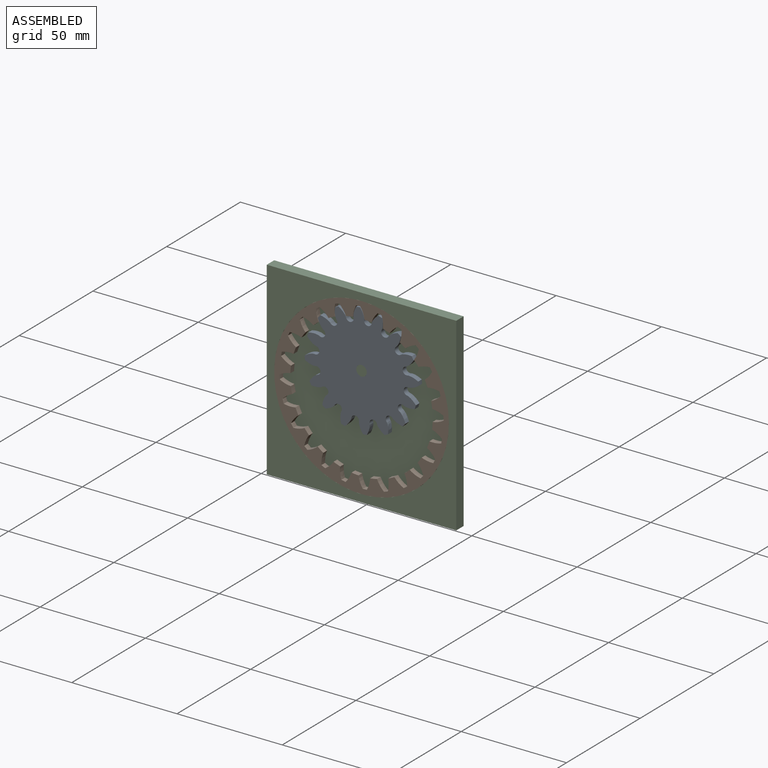
[diagram: assembled view]
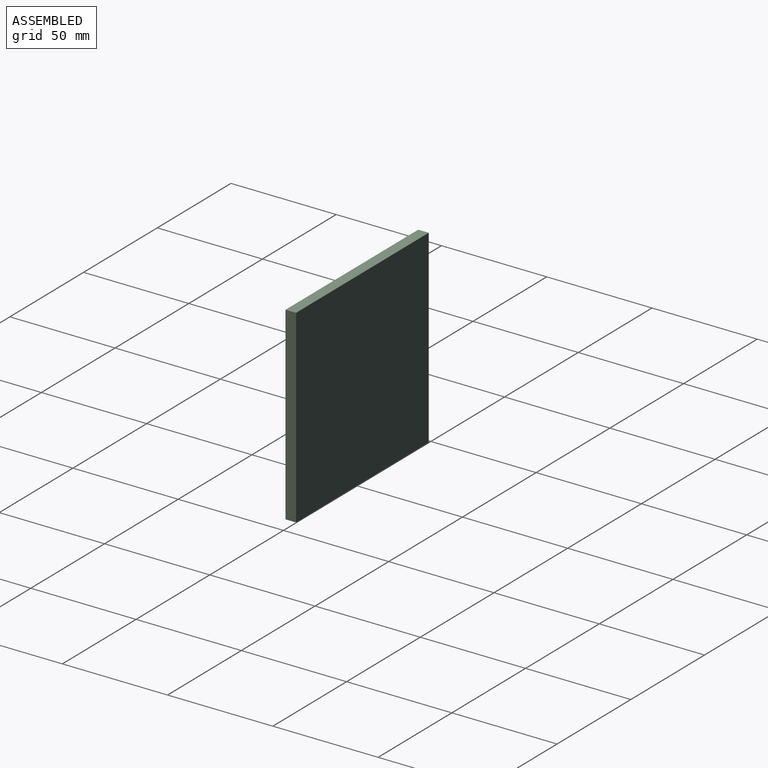
[diagram: assembled view, second angle]
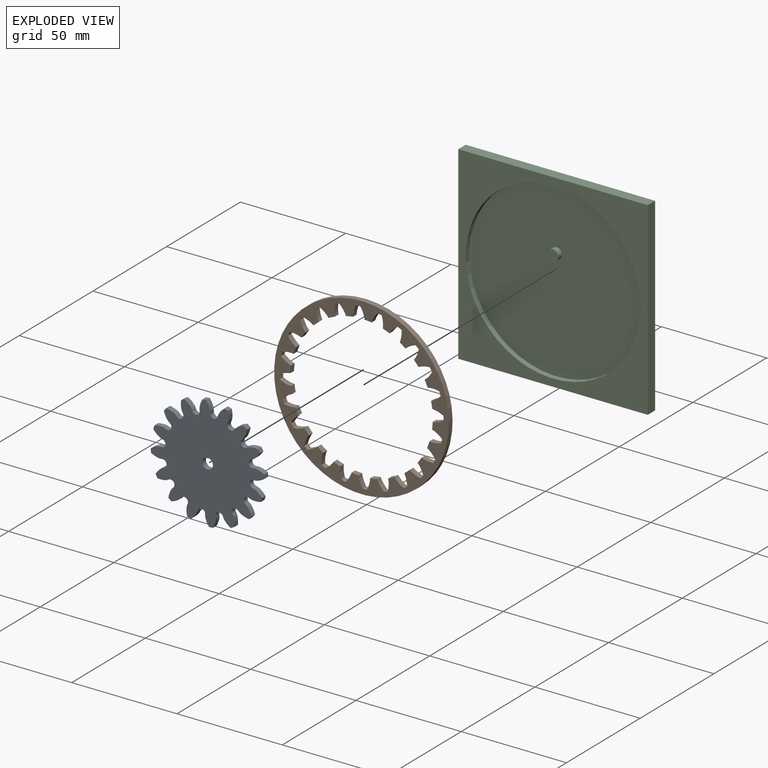
[diagram: exploded view]
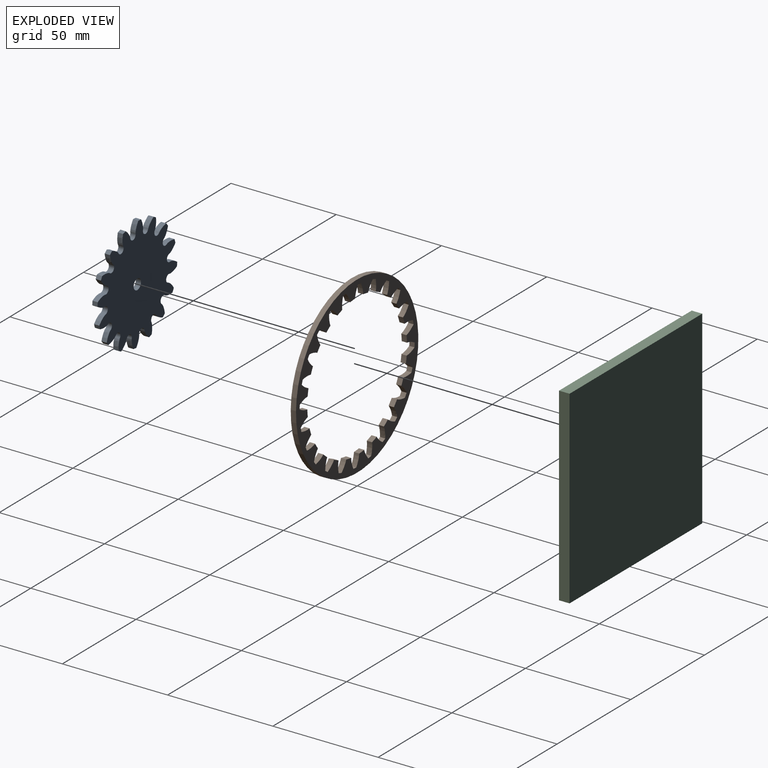
[diagram: exploded view, second angle]
ASSEMBLY  parts=3 mates=2
PART A: 99 faces, bbox 54.1x2.5x54.1 mm
  f0: plane 54.15x54.15mm, normal (0,-1,0), area 1752mm2, adj f1,f2,f3,f4,f5,f6,f7,f8
  f1: cylinder r=1.81mm len=3.56mm, axis (0,1,0), area 13.5mm2, adj f0,f17,f23,f97
  f2: cylinder r=1.81mm len=3.56mm, axis (0,1,0), area 13.5mm2, adj f0,f18,f92,f97
  f3: cylinder r=1.81mm len=3.24mm, axis (0,1,0), area 13.5mm2, adj f0,f22,f28,f97
  f4: cylinder r=1.81mm len=3.24mm, axis (0,1,0), area 13.5mm2, adj f0,f27,f33,f97
  f5: cylinder r=1.81mm len=3.56mm, axis (0,1,0), area 13.5mm2, adj f0,f32,f38,f97
  f6: cylinder r=1.81mm len=3.56mm, axis (0,1,0), area 13.5mm2, adj f0,f37,f43,f97
  f7: cylinder r=1.81mm len=3.24mm, axis (0,1,0), area 13.5mm2, adj f0,f42,f48,f97
  f8: cylinder r=1.81mm len=3.24mm, axis (0,1,0), area 13.5mm2, adj f0,f47,f53,f97
  f9: cylinder r=1.81mm len=3.56mm, axis (0,1,0), area 13.5mm2, adj f0,f52,f58,f97
  f10: cylinder r=1.81mm len=3.56mm, axis (0,1,0), area 13.5mm2, adj f0,f57,f63,f97
  f11: cylinder r=1.81mm len=3.24mm, axis (0,1,0), area 13.5mm2, adj f0,f62,f68,f97
  f12: cylinder r=1.81mm len=3.24mm, axis (0,1,0), area 13.5mm2, adj f0,f67,f73,f97
  f13: cylinder r=1.81mm len=3.56mm, axis (0,1,0), area 13.5mm2, adj f0,f72,f78,f97
  f14: cylinder r=1.81mm len=3.56mm, axis (0,1,0), area 13.5mm2, adj f0,f77,f83,f97
  f15: cylinder r=1.81mm len=3.24mm, axis (0,1,0), area 13.5mm2, adj f0,f82,f88,f97
  f16: cylinder r=1.81mm len=3.24mm, axis (0,1,0), area 13.5mm2, adj f0,f87,f93,f97
  f17: plane 2.5x0.56mm, normal (-0.99,0,-0.11), area 1.4mm2, adj f0,f1,f21,f97
  f18: plane 2.5x0.56mm, normal (0.99,0,-0.11), area 1.4mm2, adj f0,f2,f19,f97
  f19: extruded ~4.64x2.5mm, area 12.5mm2, adj f0,f18,f20,f97
  f20: plane 2.5x1.85mm, normal (-0.03,0,1), area 4.6mm2, adj f0,f19,f21,f97
  f21: extruded ~4.58x2.5mm, area 12.3mm2, adj f0,f17,f20,f97
  f22: plane 2.5x0.49mm, normal (-0.87,0,-0.49), area 1.4mm2, adj f0,f3,f26,f97
  f23: plane 2.5x0.54mm, normal (0.96,0,0.28), area 1.4mm2, adj f0,f1,f24,f97
  f24: extruded ~3.65x3.31mm, area 12.5mm2, adj f0,f23,f25,f97
  f25: plane 2.5x1.68mm, normal (-0.41,0,0.91), area 4.6mm2, adj f0,f24,f26,f97
  f26: extruded ~4.85x2.5mm, area 12.3mm2, adj f0,f22,f25,f97
  f27: plane 2.5x0.44mm, normal (-0.62,0,-0.78), area 1.4mm2, adj f0,f4,f31,f97
  f28: plane 2.5x0.44mm, normal (0.78,0,0.62), area 1.4mm2, adj f0,f3,f29,f97
  f29: extruded ~4.46x2.5mm, area 12.5mm2, adj f0,f28,f30,f97
  f30: plane 2.5x1.35mm, normal (-0.73,0,0.68), area 4.6mm2, adj f0,f29,f31,f97
  f31: extruded ~4.38x2.5mm, area 12.3mm2, adj f0,f27,f30,f97
  f32: plane 2.5x0.54mm, normal (-0.28,0,-0.96), area 1.4mm2, adj f0,f5,f36,f97
  f33: plane 2.5x0.49mm, normal (0.49,0,0.87), area 1.4mm2, adj f0,f4,f34,f97
  f34: extruded ~4.92x2.5mm, area 12.5mm2, adj f0,f33,f35,f97
  f35: plane 2.5x1.73mm, normal (-0.94,0,0.35), area 4.6mm2, adj f0,f34,f36,f97
  f36: extruded ~3.61x3.25mm, area 12.3mm2, adj f0,f32,f35,f97
  f37: plane 2.5x0.56mm, normal (0.11,0,-0.99), area 1.4mm2, adj f0,f6,f41,f97
  f38: plane 2.5x0.56mm, normal (0.11,0,0.99), area 1.4mm2, adj f0,f5,f39,f97
  f39: extruded ~4.64x2.5mm, area 12.5mm2, adj f0,f38,f40,f97
  f40: plane 2.5x1.85mm, normal (-1,0,-0.03), area 4.6mm2, adj f0,f39,f41,f97
  f41: extruded ~4.58x2.5mm, area 12.3mm2, adj f0,f37,f40,f97
  f42: plane 2.5x0.49mm, normal (0.49,0,-0.87), area 1.4mm2, adj f0,f7,f46,f97
  f43: plane 2.5x0.54mm, normal (-0.28,0,0.96), area 1.4mm2, adj f0,f6,f44,f97
  f44: extruded ~3.65x3.31mm, area 12.5mm2, adj f0,f43,f45,f97
  f45: plane 2.5x1.68mm, normal (-0.91,0,-0.41), area 4.6mm2, adj f0,f44,f46,f97
  f46: extruded ~4.85x2.5mm, area 12.3mm2, adj f0,f42,f45,f97
  f47: plane 2.5x0.44mm, normal (0.78,0,-0.62), area 1.4mm2, adj f0,f8,f51,f97
  f48: plane 2.5x0.44mm, normal (-0.62,0,0.78), area 1.4mm2, adj f0,f7,f49,f97
  f49: extruded ~4.46x2.5mm, area 12.5mm2, adj f0,f48,f50,f97
  f50: plane 2.5x1.35mm, normal (-0.68,0,-0.73), area 4.6mm2, adj f0,f49,f51,f97
  f51: extruded ~4.38x2.5mm, area 12.3mm2, adj f0,f47,f50,f97
  f52: plane 2.5x0.54mm, normal (0.96,0,-0.28), area 1.4mm2, adj f0,f9,f56,f97
  f53: plane 2.5x0.49mm, normal (-0.87,0,0.49), area 1.4mm2, adj f0,f8,f54,f97
  f54: extruded ~4.92x2.5mm, area 12.5mm2, adj f0,f53,f55,f97
  f55: plane 2.5x1.73mm, normal (-0.35,0,-0.94), area 4.6mm2, adj f0,f54,f56,f97
  f56: extruded ~3.61x3.25mm, area 12.3mm2, adj f0,f52,f55,f97
  f57: plane 2.5x0.56mm, normal (0.99,0,0.11), area 1.4mm2, adj f0,f10,f61,f97
  f58: plane 2.5x0.56mm, normal (-0.99,0,0.11), area 1.4mm2, adj f0,f9,f59,f97
  f59: extruded ~4.64x2.5mm, area 12.5mm2, adj f0,f58,f60,f97
  f60: plane 2.5x1.85mm, normal (0.03,0,-1), area 4.6mm2, adj f0,f59,f61,f97
  f61: extruded ~4.58x2.5mm, area 12.3mm2, adj f0,f57,f60,f97
  f62: plane 2.5x0.49mm, normal (0.87,0,0.49), area 1.4mm2, adj f0,f11,f66,f97
  f63: plane 2.5x0.54mm, normal (-0.96,0,-0.28), area 1.4mm2, adj f0,f10,f64,f97
  f64: extruded ~3.65x3.31mm, area 12.5mm2, adj f0,f63,f65,f97
  f65: plane 2.5x1.68mm, normal (0.41,0,-0.91), area 4.6mm2, adj f0,f64,f66,f97
  f66: extruded ~4.85x2.5mm, area 12.3mm2, adj f0,f62,f65,f97
  f67: plane 2.5x0.44mm, normal (0.62,0,0.78), area 1.4mm2, adj f0,f12,f71,f97
  f68: plane 2.5x0.44mm, normal (-0.78,0,-0.62), area 1.4mm2, adj f0,f11,f69,f97
  f69: extruded ~4.46x2.5mm, area 12.5mm2, adj f0,f68,f70,f97
  f70: plane 2.5x1.35mm, normal (0.73,0,-0.68), area 4.6mm2, adj f0,f69,f71,f97
  f71: extruded ~4.38x2.5mm, area 12.3mm2, adj f0,f67,f70,f97
  f72: plane 2.5x0.54mm, normal (0.28,0,0.96), area 1.4mm2, adj f0,f13,f76,f97
  f73: plane 2.5x0.49mm, normal (-0.49,0,-0.87), area 1.4mm2, adj f0,f12,f74,f97
  f74: extruded ~4.92x2.5mm, area 12.5mm2, adj f0,f73,f75,f97
  f75: plane 2.5x1.73mm, normal (0.94,0,-0.35), area 4.6mm2, adj f0,f74,f76,f97
  f76: extruded ~3.61x3.25mm, area 12.3mm2, adj f0,f72,f75,f97
  f77: plane 2.5x0.56mm, normal (-0.11,0,0.99), area 1.4mm2, adj f0,f14,f81,f97
  f78: plane 2.5x0.56mm, normal (-0.11,0,-0.99), area 1.4mm2, adj f0,f13,f79,f97
  f79: extruded ~4.64x2.5mm, area 12.5mm2, adj f0,f78,f80,f97
  f80: plane 2.5x1.85mm, normal (1,0,0.03), area 4.6mm2, adj f0,f79,f81,f97
  f81: extruded ~4.58x2.5mm, area 12.3mm2, adj f0,f77,f80,f97
  f82: plane 2.5x0.49mm, normal (-0.49,0,0.87), area 1.4mm2, adj f0,f15,f86,f97
  f83: plane 2.5x0.54mm, normal (0.28,0,-0.96), area 1.4mm2, adj f0,f14,f84,f97
  f84: extruded ~3.65x3.31mm, area 12.5mm2, adj f0,f83,f85,f97
  f85: plane 2.5x1.68mm, normal (0.91,0,0.41), area 4.6mm2, adj f0,f84,f86,f97
  f86: extruded ~4.85x2.5mm, area 12.3mm2, adj f0,f82,f85,f97
  f87: plane 2.5x0.44mm, normal (-0.78,0,0.62), area 1.4mm2, adj f0,f16,f91,f97
  f88: plane 2.5x0.44mm, normal (0.62,0,-0.78), area 1.4mm2, adj f0,f15,f89,f97
  f89: extruded ~4.46x2.5mm, area 12.5mm2, adj f0,f88,f90,f97
  f90: plane 2.5x1.35mm, normal (0.68,0,0.73), area 4.6mm2, adj f0,f89,f91,f97
  f91: extruded ~4.38x2.5mm, area 12.3mm2, adj f0,f87,f90,f97
  f92: plane 2.5x0.54mm, normal (-0.96,0,0.28), area 1.4mm2, adj f0,f2,f96,f97
  f93: plane 2.5x0.49mm, normal (0.87,0,-0.49), area 1.4mm2, adj f0,f16,f94,f97
  f94: extruded ~4.92x2.5mm, area 12.5mm2, adj f0,f93,f95,f97
  f95: plane 2.5x1.73mm, normal (0.35,0,0.94), area 4.6mm2, adj f0,f94,f96,f97
  f96: extruded ~3.61x3.25mm, area 12.3mm2, adj f0,f92,f95,f97
  f97: plane 54.15x54.15mm, normal (0,1,0), area 1752mm2, adj f1,f2,f3,f4,f5,f6,f7,f8
  f98: cylinder r=2.5mm len=5mm, axis (0,-1,0), area 39.3mm2, adj f0,f97
PART B: 99 faces, bbox 83x2.5x83 mm
  f0: cylinder r=33.83mm len=3.34mm, axis (0,1,0), area 8.4mm2, adj f2,f3,f28,f96
  f1: cylinder r=33.83mm len=3.11mm, axis (0,1,0), area 8.4mm2, adj f2,f3,f93,f97
  f2: plane 83x83mm, normal (0,-1,0), area 1290.7mm2, adj f0,f1,f4,f5,f6,f7,f8,f9
  f3: plane 83x83mm, normal (0,1,0), area 1290.7mm2, adj f0,f1,f4,f5,f6,f7,f8,f9
  f4: cylinder r=33.83mm len=2.67mm, axis (0,1,0), area 8.4mm2, adj f2,f3,f90,f94
  f5: cylinder r=33.83mm len=2.67mm, axis (0,1,0), area 8.4mm2, adj f2,f3,f87,f91
  f6: cylinder r=33.83mm len=3.11mm, axis (0,1,0), area 8.4mm2, adj f2,f3,f84,f88
  f7: cylinder r=33.83mm len=3.34mm, axis (0,1,0), area 8.4mm2, adj f2,f3,f81,f85
  f8: cylinder r=33.83mm len=3.34mm, axis (0,1,0), area 8.4mm2, adj f2,f3,f78,f82
  f9: cylinder r=33.83mm len=3.11mm, axis (0,1,0), area 8.4mm2, adj f2,f3,f75,f79
  f10: cylinder r=33.83mm len=2.67mm, axis (0,1,0), area 8.4mm2, adj f2,f3,f72,f76
  f11: cylinder r=33.83mm len=2.67mm, axis (0,1,0), area 8.4mm2, adj f2,f3,f69,f73
  f12: cylinder r=33.83mm len=3.11mm, axis (0,1,0), area 8.4mm2, adj f2,f3,f66,f70
  f13: cylinder r=33.83mm len=3.34mm, axis (0,1,0), area 8.4mm2, adj f2,f3,f63,f67
  f14: cylinder r=33.83mm len=3.34mm, axis (0,1,0), area 8.4mm2, adj f2,f3,f60,f64
  f15: cylinder r=33.83mm len=3.11mm, axis (0,1,0), area 8.4mm2, adj f2,f3,f57,f61
  f16: cylinder r=33.83mm len=2.67mm, axis (0,1,0), area 8.4mm2, adj f2,f3,f54,f58
  f17: cylinder r=33.83mm len=2.67mm, axis (0,1,0), area 8.4mm2, adj f2,f3,f51,f55
  f18: cylinder r=33.83mm len=3.11mm, axis (0,1,0), area 8.4mm2, adj f2,f3,f48,f52
  f19: cylinder r=33.83mm len=3.34mm, axis (0,1,0), area 8.4mm2, adj f2,f3,f45,f49
  f20: cylinder r=33.83mm len=3.34mm, axis (0,1,0), area 8.4mm2, adj f2,f3,f42,f46
  f21: cylinder r=33.83mm len=3.11mm, axis (0,1,0), area 8.4mm2, adj f2,f3,f39,f43
  f22: cylinder r=33.83mm len=2.67mm, axis (0,1,0), area 8.4mm2, adj f2,f3,f36,f40
  f23: cylinder r=33.83mm len=2.67mm, axis (0,1,0), area 8.4mm2, adj f2,f3,f33,f37
  f24: cylinder r=33.83mm len=3.11mm, axis (0,1,0), area 8.4mm2, adj f2,f3,f30,f34
  f25: cylinder r=33.83mm len=3.34mm, axis (0,1,0), area 8.4mm2, adj f2,f3,f27,f31
  f26: cylinder r=41.5mm len=83mm, axis (0,1,0), area 651.9mm2, adj f2,f3
  f27: extruded ~5.27x2.5mm, area 14mm2, adj f2,f3,f25,f29
  f28: extruded ~5.32x2.5mm, area 14.1mm2, adj f0,f2,f3,f29
  f29: plane 2.5x2.01mm, normal (0.03,0,-1), area 5mm2, adj f2,f3,f27,f28
  f30: extruded ~5.53x2.5mm, area 14mm2, adj f2,f3,f24,f32
  f31: extruded ~4.69x3.07mm, area 14.1mm2, adj f2,f3,f25,f32
  f32: plane 2.5x1.93mm, normal (0.28,0,-0.96), area 5mm2, adj f2,f3,f30,f31
  f33: extruded ~5.42x2.5mm, area 14mm2, adj f2,f3,f23,f35
  f34: extruded ~4.18x3.73mm, area 14.1mm2, adj f2,f3,f24,f35
  f35: plane 2.5x1.72mm, normal (0.52,0,-0.85), area 5mm2, adj f2,f3,f33,f34
  f36: extruded ~4.94x2.51mm, area 14mm2, adj f2,f3,f22,f38
  f37: extruded ~5x2.53mm, area 14.1mm2, adj f2,f3,f23,f38
  f38: plane 2.5x1.46mm, normal (0.73,0,-0.69), area 5mm2, adj f2,f3,f36,f37
  f39: extruded ~4.12x3.7mm, area 14mm2, adj f2,f3,f21,f41
  f40: extruded ~5.48x2.5mm, area 14.1mm2, adj f2,f3,f22,f41
  f41: plane 2.5x1.77mm, normal (0.88,0,-0.48), area 5mm2, adj f2,f3,f39,f40
  f42: extruded ~4.64x3.03mm, area 14mm2, adj f2,f3,f20,f44
  f43: extruded ~5.59x2.5mm, area 14.1mm2, adj f2,f3,f21,f44
  f44: plane 2.5x1.96mm, normal (0.97,0,-0.23), area 5mm2, adj f2,f3,f42,f43
  f45: extruded ~5.27x2.5mm, area 14mm2, adj f2,f3,f19,f47
  f46: extruded ~5.32x2.5mm, area 14.1mm2, adj f2,f3,f20,f47
  f47: plane 2.5x2.01mm, normal (1,0,0.03), area 5mm2, adj f2,f3,f45,f46
  f48: extruded ~5.53x2.5mm, area 14mm2, adj f2,f3,f18,f50
  f49: extruded ~4.69x3.07mm, area 14.1mm2, adj f2,f3,f19,f50
  f50: plane 2.5x1.93mm, normal (0.96,0,0.28), area 5mm2, adj f2,f3,f48,f49
  f51: extruded ~5.42x2.5mm, area 14mm2, adj f2,f3,f17,f53
  f52: extruded ~4.18x3.73mm, area 14.1mm2, adj f2,f3,f18,f53
  f53: plane 2.5x1.72mm, normal (0.85,0,0.52), area 5mm2, adj f2,f3,f51,f52
  f54: extruded ~4.94x2.51mm, area 14mm2, adj f2,f3,f16,f56
  f55: extruded ~5x2.53mm, area 14.1mm2, adj f2,f3,f17,f56
  f56: plane 2.5x1.46mm, normal (0.69,0,0.73), area 5mm2, adj f2,f3,f54,f55
  f57: extruded ~4.12x3.7mm, area 14mm2, adj f2,f3,f15,f59
  f58: extruded ~5.48x2.5mm, area 14.1mm2, adj f2,f3,f16,f59
  f59: plane 2.5x1.77mm, normal (0.48,0,0.88), area 5mm2, adj f2,f3,f57,f58
  f60: extruded ~4.64x3.03mm, area 14mm2, adj f2,f3,f14,f62
  f61: extruded ~5.59x2.5mm, area 14.1mm2, adj f2,f3,f15,f62
  f62: plane 2.5x1.96mm, normal (0.23,0,0.97), area 5mm2, adj f2,f3,f60,f61
  f63: extruded ~5.27x2.5mm, area 14mm2, adj f2,f3,f13,f65
  f64: extruded ~5.32x2.5mm, area 14.1mm2, adj f2,f3,f14,f65
  f65: plane 2.5x2.01mm, normal (-0.03,0,1), area 5mm2, adj f2,f3,f63,f64
  f66: extruded ~5.53x2.5mm, area 14mm2, adj f2,f3,f12,f68
  f67: extruded ~4.69x3.07mm, area 14.1mm2, adj f2,f3,f13,f68
  f68: plane 2.5x1.93mm, normal (-0.28,0,0.96), area 5mm2, adj f2,f3,f66,f67
  f69: extruded ~5.42x2.5mm, area 14mm2, adj f2,f3,f11,f71
  f70: extruded ~4.18x3.73mm, area 14.1mm2, adj f2,f3,f12,f71
  f71: plane 2.5x1.72mm, normal (-0.52,0,0.85), area 5mm2, adj f2,f3,f69,f70
  f72: extruded ~4.94x2.51mm, area 14mm2, adj f2,f3,f10,f74
  f73: extruded ~5x2.53mm, area 14.1mm2, adj f2,f3,f11,f74
  f74: plane 2.5x1.46mm, normal (-0.73,0,0.69), area 5mm2, adj f2,f3,f72,f73
  f75: extruded ~4.12x3.7mm, area 14mm2, adj f2,f3,f9,f77
  f76: extruded ~5.48x2.5mm, area 14.1mm2, adj f2,f3,f10,f77
  f77: plane 2.5x1.77mm, normal (-0.88,0,0.48), area 5mm2, adj f2,f3,f75,f76
  f78: extruded ~4.64x3.03mm, area 14mm2, adj f2,f3,f8,f80
  f79: extruded ~5.59x2.5mm, area 14.1mm2, adj f2,f3,f9,f80
  f80: plane 2.5x1.96mm, normal (-0.97,0,0.23), area 5mm2, adj f2,f3,f78,f79
  f81: extruded ~5.27x2.5mm, area 14mm2, adj f2,f3,f7,f83
  f82: extruded ~5.32x2.5mm, area 14.1mm2, adj f2,f3,f8,f83
  f83: plane 2.5x2.01mm, normal (-1,0,-0.03), area 5mm2, adj f2,f3,f81,f82
  f84: extruded ~5.53x2.5mm, area 14mm2, adj f2,f3,f6,f86
  f85: extruded ~4.69x3.07mm, area 14.1mm2, adj f2,f3,f7,f86
  f86: plane 2.5x1.93mm, normal (-0.96,0,-0.28), area 5mm2, adj f2,f3,f84,f85
  f87: extruded ~5.42x2.5mm, area 14mm2, adj f2,f3,f5,f89
  f88: extruded ~4.18x3.73mm, area 14.1mm2, adj f2,f3,f6,f89
  f89: plane 2.5x1.72mm, normal (-0.85,0,-0.52), area 5mm2, adj f2,f3,f87,f88
  f90: extruded ~4.94x2.51mm, area 14mm2, adj f2,f3,f4,f92
  f91: extruded ~5x2.53mm, area 14.1mm2, adj f2,f3,f5,f92
  f92: plane 2.5x1.46mm, normal (-0.69,0,-0.73), area 5mm2, adj f2,f3,f90,f91
  f93: extruded ~4.12x3.7mm, area 14mm2, adj f1,f2,f3,f95
  f94: extruded ~5.48x2.5mm, area 14.1mm2, adj f2,f3,f4,f95
  f95: plane 2.5x1.77mm, normal (-0.48,0,-0.88), area 5mm2, adj f2,f3,f93,f94
  f96: extruded ~4.64x3.03mm, area 14mm2, adj f0,f2,f3,f98
  f97: extruded ~5.59x2.5mm, area 14.1mm2, adj f1,f2,f3,f98
  f98: plane 2.5x1.96mm, normal (-0.23,0,-0.97), area 5mm2, adj f2,f3,f96,f97
PART C: 10 faces, bbox 90x5x90 mm
  f0: plane 90x5mm, normal (1,0,0), area 450mm2, adj f1,f3,f4,f6
  f1: plane 90x5mm, normal (0,0,1), area 450mm2, adj f0,f2,f4,f6
  f2: plane 90x5mm, normal (-1,0,0), area 450mm2, adj f1,f3,f4,f6
  f3: plane 90x5mm, normal (0,0,-1), area 450mm2, adj f0,f2,f4,f6
  f4: plane 90x90mm, normal (0,1,0), area 8100mm2, adj f0,f1,f2,f3
  f5: cylinder r=41.5mm len=83mm, axis (0,1,0), area 651.9mm2, adj f6,f7
  f6: plane 90x90mm, normal (0,-1,0), area 2689.4mm2, adj f0,f1,f2,f3,f5
  f7: plane 83x83mm, normal (0,-1,0), area 5391mm2, adj f5,f8
  f8: cylinder r=2.5mm len=5mm, axis (0,1,0), area 39.3mm2, adj f7,f9
  f9: plane 5x5mm, normal (0,-1,0), area 19.6mm2, adj f8
PLACE A rot(axis=(0,-1,0),93.4deg) t=(-0.43,-0.29,11.44)mm
PLACE B rot(axis=(0,1,0),57.7deg) t=(-0.43,-0.29,-0.06)mm
PLACE C t=(-0.43,2.21,-0.06)mm fixed
MATE revolute A.f98 <-> C.f8  axis (0,1,0) through (-0.43,-0.29,11.44)mm
MATE revolute B.f0 <-> C.f5  axis (0,1,0) through (-0.43,-0.29,-0.06)mm
